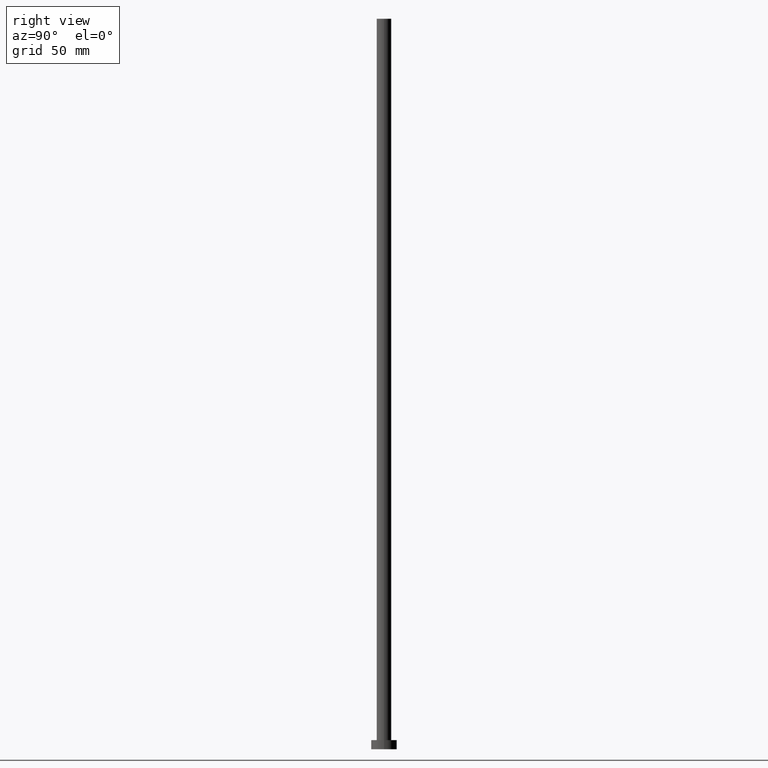
[diagram: clean part render]
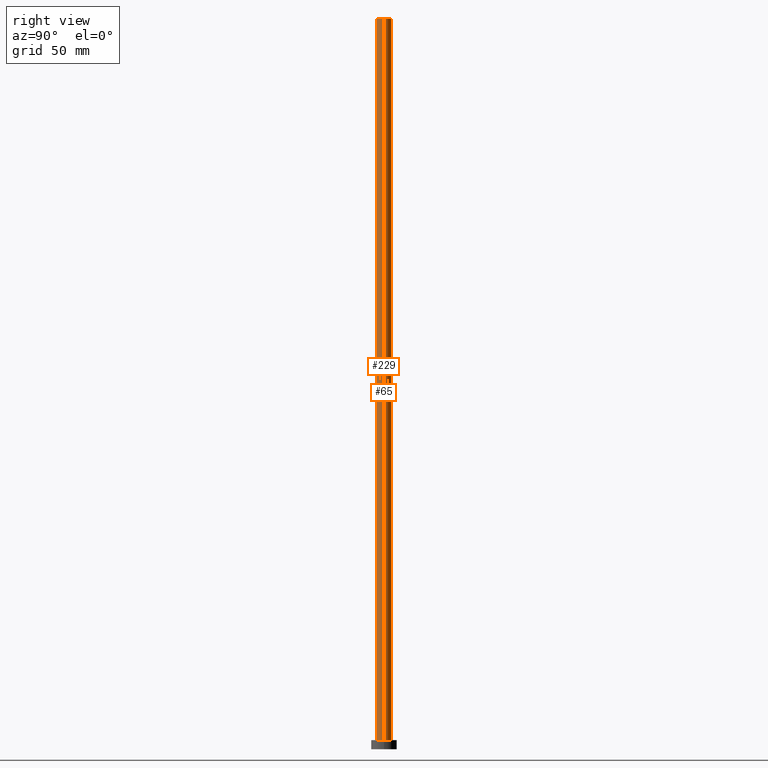
[diagram: same view with one multi-face feature highlighted, each face labeled with its STEP entity id]
A machine part, right view. The highlighted faces form ONE feature: a constant-radius fillet chain: 2 tangent blend faces with common blend radius 4 mm. The faces share edges in the B-rep.
Their STEP definitions:
[1] entity #229 (Cylinder):
#3 = ORIENTED_EDGE ( 'NONE', *, *, #176, .F. ) ;
#10 = DIRECTION ( 'NONE',  ( -0.000000000000000000, -0.000000000000000000, -1.000000000000000000 ) ) ;
#11 = CARTESIAN_POINT ( 'NONE',  ( 4.000000000000000000, 4.898587196589411843E-16, 5.000000000000000000 ) ) ;
#14 = VECTOR ( 'NONE', #10, 1000.000000000000000 ) ;
#23 = VECTOR ( 'NONE', #42, 1000.000000000000000 ) ;
#42 = DIRECTION ( 'NONE',  ( -0.000000000000000000, -0.000000000000000000, -1.000000000000000000 ) ) ;
#56 = ORIENTED_EDGE ( 'NONE', *, *, #125, .T. ) ;
#62 = LINE ( 'NONE', #100, #23 ) ;
#66 = FACE_OUTER_BOUND ( 'NONE', #128, .T. ) ;
#69 = ORIENTED_EDGE ( 'NONE', *, *, #76, .F. ) ;
#76 = EDGE_CURVE ( 'NONE', #233, #121, #148, .T. ) ;
#80 = DIRECTION ( 'NONE',  ( 1.000000000000000000, 0.000000000000000000, 0.000000000000000000 ) ) ;
#83 = CARTESIAN_POINT ( 'NONE',  ( 4.000000000000000000, 4.898587196589411843E-16, 400.0000000000000000 ) ) ;
#88 = VERTEX_POINT ( 'NONE', #11 ) ;
#89 = CARTESIAN_POINT ( 'NONE',  ( -4.000000000000000000, 0.000000000000000000, 400.0000000000000000 ) ) ;
#90 = CARTESIAN_POINT ( 'NONE',  ( 0.000000000000000000, 0.000000000000000000, 5.000000000000000000 ) ) ;
#100 = CARTESIAN_POINT ( 'NONE',  ( -4.000000000000000000, 0.000000000000000000, 400.0000000000000000 ) ) ;
#101 = DIRECTION ( 'NONE',  ( 1.000000000000000000, 0.000000000000000000, 0.000000000000000000 ) ) ;
#119 = DIRECTION ( 'NONE',  ( -1.000000000000000000, 0.000000000000000000, 0.000000000000000000 ) ) ;
#121 = VERTEX_POINT ( 'NONE', #139 ) ;
#125 = EDGE_CURVE ( 'NONE', #233, #153, #62, .T. ) ;
#126 = CIRCLE ( 'NONE', #218, 4.000000000000000000 ) ;
#127 = AXIS2_PLACEMENT_3D ( 'NONE', #244, #183, #80 ) ;
#128 = EDGE_LOOP ( 'NONE', ( #3, #69, #56, #213 ) ) ;
#139 = CARTESIAN_POINT ( 'NONE',  ( 4.000000000000000000, 4.898587196589411843E-16, 400.0000000000000000 ) ) ;
#145 = DIRECTION ( 'NONE',  ( 0.000000000000000000, 0.000000000000000000, 1.000000000000000000 ) ) ;
#147 = CARTESIAN_POINT ( 'NONE',  ( 0.000000000000000000, 0.000000000000000000, 400.0000000000000000 ) ) ;
#148 = CIRCLE ( 'NONE', #127, 4.000000000000000000 ) ;
#153 = VERTEX_POINT ( 'NONE', #184 ) ;
#176 = EDGE_CURVE ( 'NONE', #121, #88, #246, .T. ) ;
#183 = DIRECTION ( 'NONE',  ( 0.000000000000000000, 0.000000000000000000, 1.000000000000000000 ) ) ;
#184 = CARTESIAN_POINT ( 'NONE',  ( -4.000000000000000000, 0.000000000000000000, 5.000000000000000000 ) ) ;
#187 = CYLINDRICAL_SURFACE ( 'NONE', #230, 4.000000000000000000 ) ;
#211 = DIRECTION ( 'NONE',  ( -0.000000000000000000, -0.000000000000000000, -1.000000000000000000 ) ) ;
#213 = ORIENTED_EDGE ( 'NONE', *, *, #240, .T. ) ;
#218 = AXIS2_PLACEMENT_3D ( 'NONE', #90, #145, #101 ) ;
#229 = ADVANCED_FACE ( 'NONE', ( #66 ), #187, .T. ) ;
#230 = AXIS2_PLACEMENT_3D ( 'NONE', #147, #211, #119 ) ;
#233 = VERTEX_POINT ( 'NONE', #89 ) ;
#240 = EDGE_CURVE ( 'NONE', #153, #88, #126, .T. ) ;
#244 = CARTESIAN_POINT ( 'NONE',  ( 0.000000000000000000, 0.000000000000000000, 400.0000000000000000 ) ) ;
#246 = LINE ( 'NONE', #83, #14 ) ;
[2] entity #65 (Cylinder):
#10 = DIRECTION ( 'NONE',  ( -0.000000000000000000, -0.000000000000000000, -1.000000000000000000 ) ) ;
#11 = CARTESIAN_POINT ( 'NONE',  ( 4.000000000000000000, 4.898587196589411843E-16, 5.000000000000000000 ) ) ;
#14 = VECTOR ( 'NONE', #10, 1000.000000000000000 ) ;
#21 = EDGE_CURVE ( 'NONE', #121, #233, #223, .T. ) ;
#23 = VECTOR ( 'NONE', #42, 1000.000000000000000 ) ;
#42 = DIRECTION ( 'NONE',  ( -0.000000000000000000, -0.000000000000000000, -1.000000000000000000 ) ) ;
#45 = DIRECTION ( 'NONE',  ( 0.000000000000000000, 0.000000000000000000, 1.000000000000000000 ) ) ;
#51 = ORIENTED_EDGE ( 'NONE', *, *, #176, .T. ) ;
#57 = CIRCLE ( 'NONE', #154, 4.000000000000000000 ) ;
#59 = CARTESIAN_POINT ( 'NONE',  ( 0.000000000000000000, 0.000000000000000000, 400.0000000000000000 ) ) ;
#62 = LINE ( 'NONE', #100, #23 ) ;
#63 = FACE_OUTER_BOUND ( 'NONE', #215, .T. ) ;
#65 = ADVANCED_FACE ( 'NONE', ( #63 ), #227, .T. ) ;
#83 = CARTESIAN_POINT ( 'NONE',  ( 4.000000000000000000, 4.898587196589411843E-16, 400.0000000000000000 ) ) ;
#87 = EDGE_CURVE ( 'NONE', #88, #153, #57, .T. ) ;
#88 = VERTEX_POINT ( 'NONE', #11 ) ;
#89 = CARTESIAN_POINT ( 'NONE',  ( -4.000000000000000000, 0.000000000000000000, 400.0000000000000000 ) ) ;
#95 = AXIS2_PLACEMENT_3D ( 'NONE', #59, #45, #248 ) ;
#100 = CARTESIAN_POINT ( 'NONE',  ( -4.000000000000000000, 0.000000000000000000, 400.0000000000000000 ) ) ;
#121 = VERTEX_POINT ( 'NONE', #139 ) ;
#125 = EDGE_CURVE ( 'NONE', #233, #153, #62, .T. ) ;
#136 = CARTESIAN_POINT ( 'NONE',  ( 0.000000000000000000, 0.000000000000000000, 5.000000000000000000 ) ) ;
#139 = CARTESIAN_POINT ( 'NONE',  ( 4.000000000000000000, 4.898587196589411843E-16, 400.0000000000000000 ) ) ;
#153 = VERTEX_POINT ( 'NONE', #184 ) ;
#154 = AXIS2_PLACEMENT_3D ( 'NONE', #136, #222, #199 ) ;
#176 = EDGE_CURVE ( 'NONE', #121, #88, #246, .T. ) ;
#177 = DIRECTION ( 'NONE',  ( -1.000000000000000000, 0.000000000000000000, 0.000000000000000000 ) ) ;
#180 = CARTESIAN_POINT ( 'NONE',  ( 0.000000000000000000, 0.000000000000000000, 400.0000000000000000 ) ) ;
#184 = CARTESIAN_POINT ( 'NONE',  ( -4.000000000000000000, 0.000000000000000000, 5.000000000000000000 ) ) ;
#191 = ORIENTED_EDGE ( 'NONE', *, *, #87, .T. ) ;
#192 = AXIS2_PLACEMENT_3D ( 'NONE', #180, #250, #177 ) ;
#199 = DIRECTION ( 'NONE',  ( 1.000000000000000000, 0.000000000000000000, 0.000000000000000000 ) ) ;
#215 = EDGE_LOOP ( 'NONE', ( #243, #51, #191, #236 ) ) ;
#222 = DIRECTION ( 'NONE',  ( 0.000000000000000000, 0.000000000000000000, 1.000000000000000000 ) ) ;
#223 = CIRCLE ( 'NONE', #95, 4.000000000000000000 ) ;
#227 = CYLINDRICAL_SURFACE ( 'NONE', #192, 4.000000000000000000 ) ;
#233 = VERTEX_POINT ( 'NONE', #89 ) ;
#236 = ORIENTED_EDGE ( 'NONE', *, *, #125, .F. ) ;
#243 = ORIENTED_EDGE ( 'NONE', *, *, #21, .F. ) ;
#246 = LINE ( 'NONE', #83, #14 ) ;
#248 = DIRECTION ( 'NONE',  ( 1.000000000000000000, 0.000000000000000000, 0.000000000000000000 ) ) ;
#250 = DIRECTION ( 'NONE',  ( -0.000000000000000000, -0.000000000000000000, -1.000000000000000000 ) ) ;